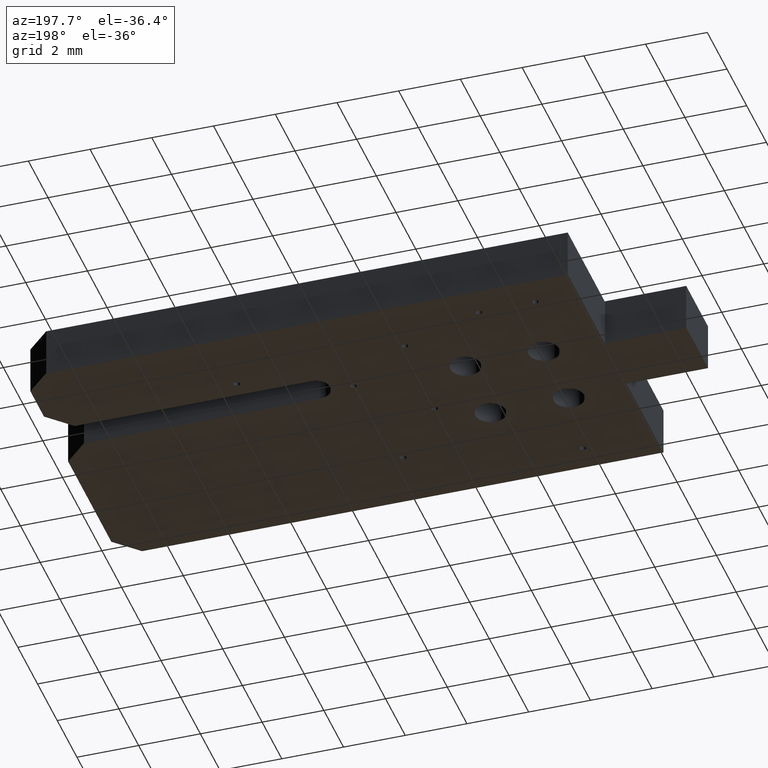
[diagram: clean part render]
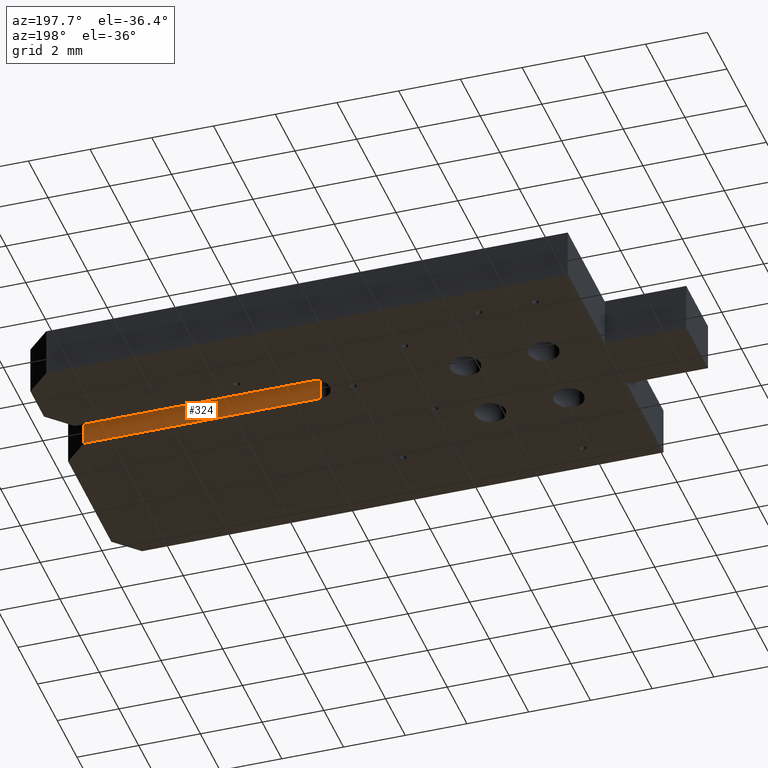
[diagram: same view with one face highlighted and labeled with its STEP entity id]
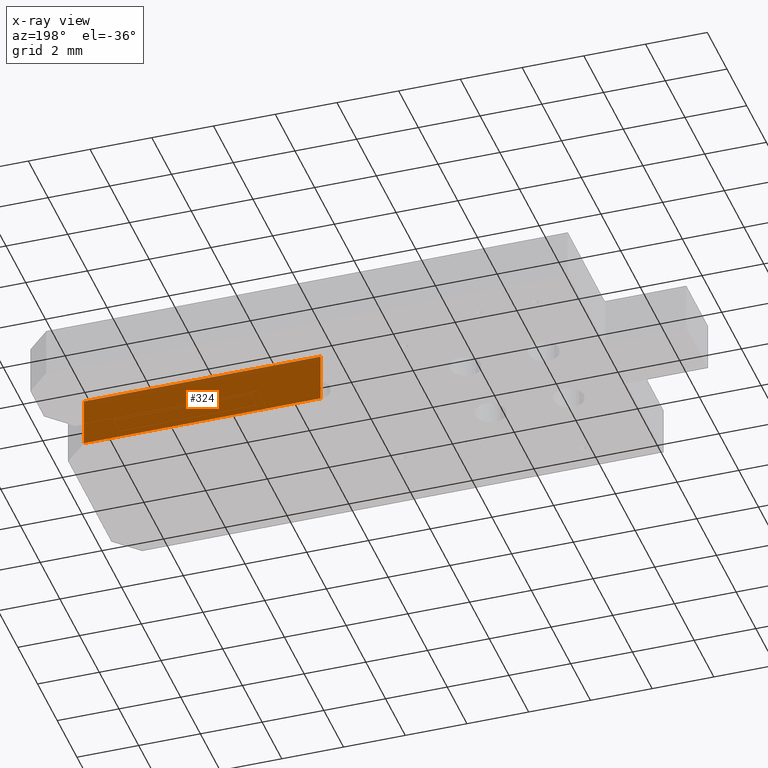
[diagram: x-ray of the same camera — body ghosted, the highlighted face saturated]
A machine part, auxiliary view. The second image highlights one B-rep face of the part: STEP entity #324.
The next image is the same camera in x-ray: the body ghosted, the highlighted face saturated — about 12% of this face is hidden behind the body in this view.
In plain terms, the highlighted planar face has unit normal (0, 1, 0).
Its self-contained STEP definition (entity closure, byte-faithful):
#297 = VERTEX_POINT('',#298);
#298 = CARTESIAN_POINT('',(13.309626619253,1.031242062484,1.600025400051
    ));
#305 = EDGE_CURVE('',#306,#297,#308,.T.);
#306 = VERTEX_POINT('',#307);
#307 = CARTESIAN_POINT('',(13.309626619253,1.031242062484,0.));
#308 = LINE('',#309,#310);
#309 = CARTESIAN_POINT('',(13.309626619253,1.031242062484,0.));
#310 = VECTOR('',#311,1.);
#311 = DIRECTION('',(0.,0.,1.));
#324 = ADVANCED_FACE('',(#325),#350,.T.);
#325 = FACE_BOUND('',#326,.T.);
#326 = EDGE_LOOP('',(#327,#328,#336,#344));
#327 = ORIENTED_EDGE('',*,*,#305,.T.);
#328 = ORIENTED_EDGE('',*,*,#329,.T.);
#329 = EDGE_CURVE('',#297,#330,#332,.T.);
#330 = VERTEX_POINT('',#331);
#331 = CARTESIAN_POINT('',(20.975181438121,1.031242062484,1.600025400051
    ));
#332 = LINE('',#333,#334);
#333 = CARTESIAN_POINT('',(13.309626619253,1.031242062484,1.600025400051
    ));
#334 = VECTOR('',#335,1.);
#335 = DIRECTION('',(1.,-8.689962181674E-17,0.));
#336 = ORIENTED_EDGE('',*,*,#337,.F.);
#337 = EDGE_CURVE('',#338,#330,#340,.T.);
#338 = VERTEX_POINT('',#339);
#339 = CARTESIAN_POINT('',(20.975181438121,1.031242062484,0.));
#340 = LINE('',#341,#342);
#341 = CARTESIAN_POINT('',(20.975181438121,1.031242062484,0.));
#342 = VECTOR('',#343,1.);
#343 = DIRECTION('',(0.,0.,1.));
#344 = ORIENTED_EDGE('',*,*,#345,.F.);
#345 = EDGE_CURVE('',#306,#338,#346,.T.);
#346 = LINE('',#347,#348);
#347 = CARTESIAN_POINT('',(13.309626619253,1.031242062484,0.));
#348 = VECTOR('',#349,1.);
#349 = DIRECTION('',(1.,-8.689962181674E-17,0.));
#350 = PLANE('',#351);
#351 = AXIS2_PLACEMENT_3D('',#352,#353,#354);
#352 = CARTESIAN_POINT('',(13.309626619253,1.031242062484,0.));
#353 = DIRECTION('',(8.689962181674E-17,1.,-0.));
#354 = DIRECTION('',(1.,-8.689962181674E-17,0.));